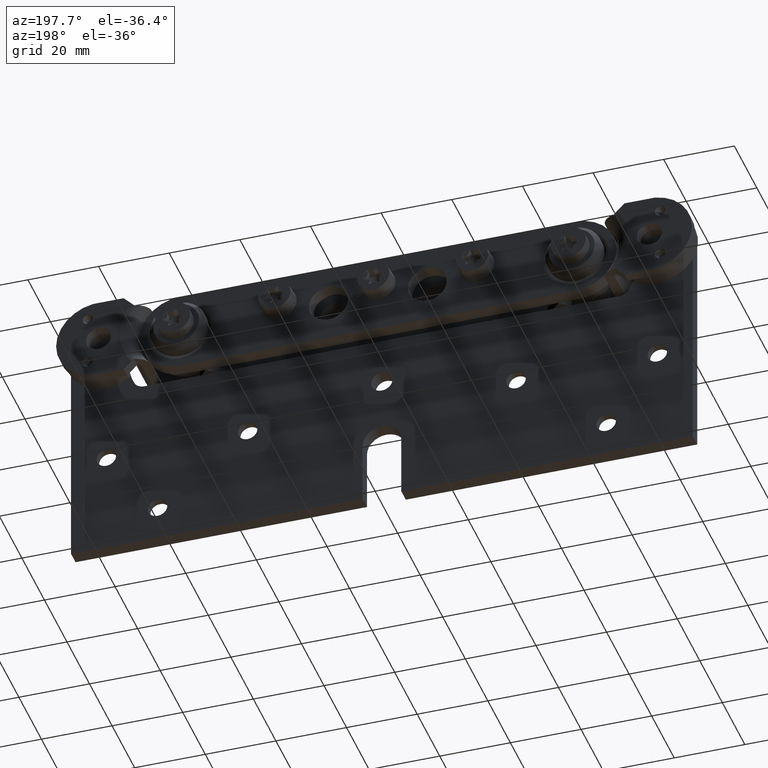
[diagram: clean part render]
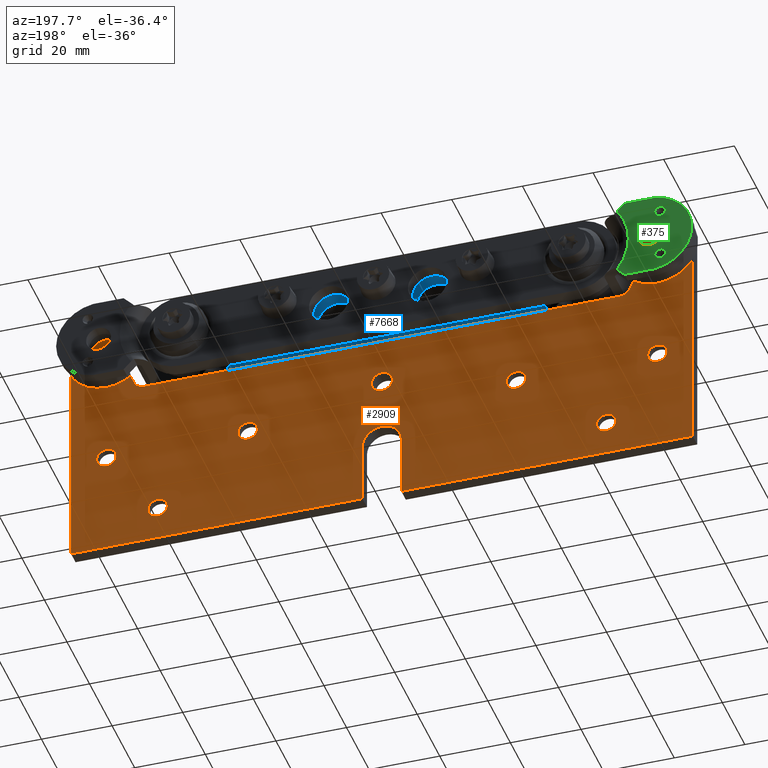
[diagram: same view with three faces highlighted in distinct colors, each labeled with its STEP entity id]
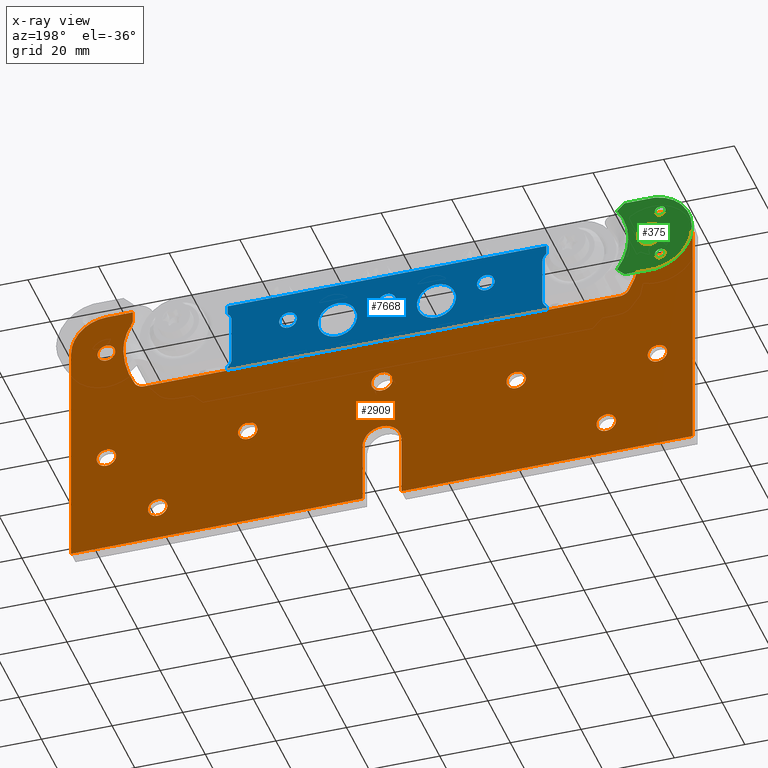
[diagram: x-ray of the same camera — body ghosted, the three highlighted faces saturated]
A machine part, auxiliary view with three faces highlighted in distinct colors.
The next image is the same camera in x-ray (body ghosted, the three faces saturated) — at least one of them is partly hidden behind the body in this view.
Their STEP definitions:

[orange] entity #2909 — the highlighted planar face has unit normal (0, 1, 0).
#73 = CARTESIAN_POINT ( 'NONE',  ( -72.50000000000001421, -4.000000000000000000, 35.69293206762673520 ) ) ;
#208 = CARTESIAN_POINT ( 'NONE',  ( -78.00000000000001421, -4.000000000000003553, 29.00000000000001066 ) ) ;
#310 = VERTEX_POINT ( 'NONE', #10543 ) ;
#348 = DIRECTION ( 'NONE',  ( 0.000000000000000000, -1.000000000000000000, 0.000000000000000000 ) ) ;
#437 = ORIENTED_EDGE ( 'NONE', *, *, #8553, .F. ) ;
#455 = VERTEX_POINT ( 'NONE', #3439 ) ;
#459 = EDGE_CURVE ( 'NONE', #10740, #2163, #3046, .T. ) ;
#471 = EDGE_CURVE ( 'NONE', #1829, #6250, #3440, .T. ) ;
#486 = EDGE_CURVE ( 'NONE', #805, #561, #1502, .T. ) ;
#561 = VERTEX_POINT ( 'NONE', #11374 ) ;
#696 = CARTESIAN_POINT ( 'NONE',  ( 70.50000000000000000, -4.000000000000000000, 35.69293206762673520 ) ) ;
#705 = EDGE_LOOP ( 'NONE', ( #1416, #9565 ) ) ;
#738 = DIRECTION ( 'NONE',  ( 0.000000000000000000, 0.000000000000000000, 1.000000000000000000 ) ) ;
#755 = EDGE_LOOP ( 'NONE', ( #4051, #8876 ) ) ;
#793 = DIRECTION ( 'NONE',  ( -1.000000000000000000, -0.000000000000000000, -0.000000000000000000 ) ) ;
#801 = ORIENTED_EDGE ( 'NONE', *, *, #10624, .T. ) ;
#805 = VERTEX_POINT ( 'NONE', #2743 ) ;
#806 = EDGE_LOOP ( 'NONE', ( #2295, #10677 ) ) ;
#814 = EDGE_CURVE ( 'NONE', #3841, #7625, #1648, .T. ) ;
#815 = DIRECTION ( 'NONE',  ( 0.000000000000000000, 0.000000000000000000, 1.000000000000000000 ) ) ;
#843 = DIRECTION ( 'NONE',  ( 1.000000000000000000, 0.000000000000000000, 0.000000000000000000 ) ) ;
#892 = CARTESIAN_POINT ( 'NONE',  ( 63.50000000000000000, -4.000000000000003553, -28.49999999999998934 ) ) ;
#938 = DIRECTION ( 'NONE',  ( -1.000000000000000000, -0.000000000000000000, -0.000000000000000000 ) ) ;
#996 = LINE ( 'NONE', #2093, #3842 ) ;
#1001 = CARTESIAN_POINT ( 'NONE',  ( 37.99999999999999289, -4.000000000000003553, -5.750000000000005329 ) ) ;
#1038 = DIRECTION ( 'NONE',  ( 0.000000000000000000, 0.000000000000000000, 1.000000000000000000 ) ) ;
#1182 = ORIENTED_EDGE ( 'NONE', *, *, #5281, .T. ) ;
#1205 = VECTOR ( 'NONE', #3490, 1000.000000000000000 ) ;
#1266 = ORIENTED_EDGE ( 'NONE', *, *, #10303, .T. ) ;
#1313 = ORIENTED_EDGE ( 'NONE', *, *, #8982, .T. ) ;
#1337 = CARTESIAN_POINT ( 'NONE',  ( -70.50000000000000000, -4.000000000000000000, 0.000000000000000000 ) ) ;
#1353 = CARTESIAN_POINT ( 'NONE',  ( -63.50000000000000000, -4.000000000000003553, -28.49999999999998934 ) ) ;
#1416 = ORIENTED_EDGE ( 'NONE', *, *, #2222, .T. ) ;
#1429 = EDGE_CURVE ( 'NONE', #6250, #805, #2312, .T. ) ;
#1454 = CIRCLE ( 'NONE', #3774, 2.500000000000002220 ) ;
#1461 = CARTESIAN_POINT ( 'NONE',  ( 63.50000000000000000, -4.000000000000003553, -25.75000000000000355 ) ) ;
#1502 = CIRCLE ( 'NONE', #4596, 2.000000000000001776 ) ;
#1505 = ORIENTED_EDGE ( 'NONE', *, *, #2409, .T. ) ;
#1580 = DIRECTION ( 'NONE',  ( -0.000000000000000000, 1.000000000000000000, -0.000000000000000000 ) ) ;
#1605 = CIRCLE ( 'NONE', #2570, 24.99999999999999289 ) ;
#1609 = VERTEX_POINT ( 'NONE', #696 ) ;
#1612 = LINE ( 'NONE', #11815, #1205 ) ;
#1648 = CIRCLE ( 'NONE', #2806, 2.749999999999988454 ) ;
#1687 = EDGE_CURVE ( 'NONE', #7937, #5512, #996, .T. ) ;
#1741 = CARTESIAN_POINT ( 'NONE',  ( -63.50000000000000000, -4.000000000000003553, -31.24999999999997868 ) ) ;
#1762 = AXIS2_PLACEMENT_3D ( 'NONE', #4535, #3326, #4416 ) ;
#1771 = DIRECTION ( 'NONE',  ( -0.000000000000000000, 1.000000000000000000, -0.000000000000000000 ) ) ;
#1772 = LINE ( 'NONE', #6569, #9115 ) ;
#1787 = DIRECTION ( 'NONE',  ( -0.000000000000000000, 1.000000000000000000, -0.000000000000000000 ) ) ;
#1801 = VERTEX_POINT ( 'NONE', #7007 ) ;
#1829 = VERTEX_POINT ( 'NONE', #8881 ) ;
#1913 = EDGE_LOOP ( 'NONE', ( #9994, #4007 ) ) ;
#1954 = CARTESIAN_POINT ( 'NONE',  ( -5.499999999999998224, -4.000000000000000000, -20.99999999999998934 ) ) ;
#2010 = CARTESIAN_POINT ( 'NONE',  ( 5.499999999999998224, -4.000000000000000000, -20.99999999999998934 ) ) ;
#2058 = DIRECTION ( 'NONE',  ( -0.000000000000000000, 1.000000000000000000, -0.000000000000000000 ) ) ;
#2093 = CARTESIAN_POINT ( 'NONE',  ( -87.99999999999998579, -4.000000000000000000, -38.49999999999999289 ) ) ;
#2163 = VERTEX_POINT ( 'NONE', #6874 ) ;
#2175 = AXIS2_PLACEMENT_3D ( 'NONE', #10049, #11877, #5444 ) ;
#2222 = EDGE_CURVE ( 'NONE', #1801, #3445, #9143, .T. ) ;
#2295 = ORIENTED_EDGE ( 'NONE', *, *, #10929, .T. ) ;
#2312 = CIRCLE ( 'NONE', #5015, 15.00000000000000355 ) ;
#2313 = FACE_OUTER_BOUND ( 'NONE', #4627, .T. ) ;
#2324 = ORIENTED_EDGE ( 'NONE', *, *, #11142, .F. ) ;
#2378 = CIRCLE ( 'NONE', #7782, 2.749999999999988454 ) ;
#2384 = VERTEX_POINT ( 'NONE', #8197 ) ;
#2409 = EDGE_CURVE ( 'NONE', #455, #9789, #1605, .T. ) ;
#2437 = CARTESIAN_POINT ( 'NONE',  ( 37.99999999999999289, -4.000000000000003553, -11.24999999999998224 ) ) ;
#2556 = CIRCLE ( 'NONE', #9919, 2.500000000000002220 ) ;
#2569 = AXIS2_PLACEMENT_3D ( 'NONE', #8355, #8474, #3866 ) ;
#2570 = AXIS2_PLACEMENT_3D ( 'NONE', #8132, #11918, #738 ) ;
#2574 = CARTESIAN_POINT ( 'NONE',  ( -73.19134425132158128, -4.000000000000000000, 25.99049284758023504 ) ) ;
#2622 = CARTESIAN_POINT ( 'NONE',  ( 0.000000000000000000, -4.000000000000000000, 13.00000000000001066 ) ) ;
#2644 = CARTESIAN_POINT ( 'NONE',  ( 78.00000000000000000, -4.000000000000000000, 28.50000000000000355 ) ) ;
#2657 = VERTEX_POINT ( 'NONE', #8180 ) ;
#2666 = LINE ( 'NONE', #6378, #3946 ) ;
#2739 = DIRECTION ( 'NONE',  ( -0.000000000000000000, 1.000000000000000000, -0.000000000000000000 ) ) ;
#2743 = CARTESIAN_POINT ( 'NONE',  ( -70.81764705882353894, -4.000000000000000000, 34.61141064790594157 ) ) ;
#2793 = AXIS2_PLACEMENT_3D ( 'NONE', #892, #4547, #8638 ) ;
#2800 = DIRECTION ( 'NONE',  ( 0.000000000000000000, 0.000000000000000000, 1.000000000000000000 ) ) ;
#2806 = AXIS2_PLACEMENT_3D ( 'NONE', #3664, #4572, #8321 ) ;
#2854 = CARTESIAN_POINT ( 'NONE',  ( 0.000000000000000000, -4.000000000000000000, -20.99999999999998934 ) ) ;
#2909 = ADVANCED_FACE ( 'NONE', ( #4969, #6785, #6012, #8790, #10679, #10428, #11527, #3031, #4908, #2313 ), #6974, .T. ) ;
#2922 = AXIS2_PLACEMENT_3D ( 'NONE', #2854, #6443, #9162 ) ;
#2929 = DIRECTION ( 'NONE',  ( 0.000000000000000000, 0.000000000000000000, 1.000000000000000000 ) ) ;
#2951 = VECTOR ( 'NONE', #9636, 1000.000000000000000 ) ;
#2988 = CIRCLE ( 'NONE', #10948, 2.999999999999988898 ) ;
#3031 = FACE_BOUND ( 'NONE', #5054, .T. ) ;
#3046 = CIRCLE ( 'NONE', #10211, 9.999999999999998224 ) ;
#3109 = CARTESIAN_POINT ( 'NONE',  ( 63.50000000000000000, -4.000000000000003553, -31.24999999999997868 ) ) ;
#3113 = DIRECTION ( 'NONE',  ( -0.000000000000000000, 1.000000000000000000, -0.000000000000000000 ) ) ;
#3130 = VERTEX_POINT ( 'NONE', #9083 ) ;
#3165 = DIRECTION ( 'NONE',  ( 0.000000000000000000, 0.000000000000000000, 1.000000000000000000 ) ) ;
#3169 = VERTEX_POINT ( 'NONE', #3746 ) ;
#3204 = AXIS2_PLACEMENT_3D ( 'NONE', #6384, #1771, #5361 ) ;
#3222 = LINE ( 'NONE', #1337, #3712 ) ;
#3244 = VERTEX_POINT ( 'NONE', #208 ) ;
#3277 = CIRCLE ( 'NONE', #8299, 2.500000000000002220 ) ;
#3326 = DIRECTION ( 'NONE',  ( 0.000000000000000000, 1.000000000000000000, 0.000000000000000000 ) ) ;
#3349 = ORIENTED_EDGE ( 'NONE', *, *, #8468, .T. ) ;
#3387 = CIRCLE ( 'NONE', #10156, 2.999999999999992450 ) ;
#3439 = CARTESIAN_POINT ( 'NONE',  ( 73.19134425132159549, -4.000000000000000000, 25.99049284758024569 ) ) ;
#3440 = CIRCLE ( 'NONE', #6155, 24.99999999999999289 ) ;
#3445 = VERTEX_POINT ( 'NONE', #1741 ) ;
#3446 = EDGE_CURVE ( 'NONE', #3445, #1801, #6252, .T. ) ;
#3457 = AXIS2_PLACEMENT_3D ( 'NONE', #5490, #6396, #9975 ) ;
#3476 = CARTESIAN_POINT ( 'NONE',  ( -78.00000000000001421, -4.000000000000003553, 26.50000000000001066 ) ) ;
#3488 = EDGE_CURVE ( 'NONE', #10740, #7211, #10485, .T. ) ;
#3490 = DIRECTION ( 'NONE',  ( 0.000000000000000000, -0.000000000000000000, -1.000000000000000000 ) ) ;
#3527 = DIRECTION ( 'NONE',  ( 0.000000000000000000, -0.000000000000000000, -1.000000000000000000 ) ) ;
#3543 = EDGE_CURVE ( 'NONE', #5561, #3244, #2556, .T. ) ;
#3562 = AXIS2_PLACEMENT_3D ( 'NONE', #11786, #9833, #6984 ) ;
#3572 = CARTESIAN_POINT ( 'NONE',  ( 0.000000000000000000, -4.000000000000003553, -0.4999999999999935052 ) ) ;
#3664 = CARTESIAN_POINT ( 'NONE',  ( -78.00000000000000000, -4.000000000000003553, -8.499999999999992895 ) ) ;
#3707 = CARTESIAN_POINT ( 'NONE',  ( 78.00000000000001421, -4.000000000000003553, 29.00000000000001066 ) ) ;
#3712 = VECTOR ( 'NONE', #11534, 1000.000000000000000 ) ;
#3746 = CARTESIAN_POINT ( 'NONE',  ( 78.00000000000000000, -4.000000000000003553, -5.750000000000005329 ) ) ;
#3750 = EDGE_CURVE ( 'NONE', #1609, #2657, #5848, .T. ) ;
#3764 = AXIS2_PLACEMENT_3D ( 'NONE', #6336, #4634, #2929 ) ;
#3771 = LINE ( 'NONE', #2622, #5685 ) ;
#3774 = AXIS2_PLACEMENT_3D ( 'NONE', #3476, #8012, #10994 ) ;
#3841 = VERTEX_POINT ( 'NONE', #4561 ) ;
#3842 = VECTOR ( 'NONE', #938, 1000.000000000000000 ) ;
#3866 = DIRECTION ( 'NONE',  ( 0.000000000000000000, 0.000000000000000000, 1.000000000000000000 ) ) ;
#3921 = ORIENTED_EDGE ( 'NONE', *, *, #7747, .T. ) ;
#3946 = VECTOR ( 'NONE', #843, 1000.000000000000000 ) ;
#3991 = DIRECTION ( 'NONE',  ( 0.000000000000000000, 0.000000000000000000, 1.000000000000000000 ) ) ;
#4007 = ORIENTED_EDGE ( 'NONE', *, *, #3543, .T. ) ;
#4020 = CARTESIAN_POINT ( 'NONE',  ( 78.00000000000000000, -4.000000000000003553, -8.499999999999992895 ) ) ;
#4051 = ORIENTED_EDGE ( 'NONE', *, *, #7417, .T. ) ;
#4057 = CARTESIAN_POINT ( 'NONE',  ( 88.00000000000001421, -4.000000000000000000, 38.50000000000000711 ) ) ;
#4059 = ORIENTED_EDGE ( 'NONE', *, *, #9001, .T. ) ;
#4096 = CARTESIAN_POINT ( 'NONE',  ( -37.99999999999999289, -4.000000000000003553, -8.499999999999992895 ) ) ;
#4135 = VERTEX_POINT ( 'NONE', #1461 ) ;
#4142 = CIRCLE ( 'NONE', #10930, 2.749999999999988454 ) ;
#4144 = CARTESIAN_POINT ( 'NONE',  ( 72.50000000000001421, -4.000000000000000000, 35.69293206762673520 ) ) ;
#4153 = VECTOR ( 'NONE', #4378, 1000.000000000000000 ) ;
#4162 = ORIENTED_EDGE ( 'NONE', *, *, #486, .T. ) ;
#4178 = DIRECTION ( 'NONE',  ( -0.000000000000000000, 1.000000000000000000, -0.000000000000000000 ) ) ;
#4224 = ORIENTED_EDGE ( 'NONE', *, *, #10619, .F. ) ;
#4297 = VECTOR ( 'NONE', #6530, 1000.000000000000000 ) ;
#4298 = DIRECTION ( 'NONE',  ( 0.000000000000000000, 1.000000000000000000, -0.000000000000000000 ) ) ;
#4325 = EDGE_CURVE ( 'NONE', #5079, #6009, #3277, .T. ) ;
#4365 = CARTESIAN_POINT ( 'NONE',  ( 63.50000000000000000, -4.000000000000003553, -28.49999999999998934 ) ) ;
#4378 = DIRECTION ( 'NONE',  ( -0.000000000000000000, -0.000000000000000000, 1.000000000000000000 ) ) ;
#4416 = DIRECTION ( 'NONE',  ( 0.000000000000000000, 0.000000000000000000, 1.000000000000000000 ) ) ;
#4439 = EDGE_CURVE ( 'NONE', #9789, #5939, #5790, .T. ) ;
#4480 = EDGE_LOOP ( 'NONE', ( #5849, #3921 ) ) ;
#4489 = DIRECTION ( 'NONE',  ( -0.000000000000000000, 1.000000000000000000, -0.000000000000000000 ) ) ;
#4508 = CARTESIAN_POINT ( 'NONE',  ( -78.00000000000000000, -4.000000000000003553, -8.499999999999992895 ) ) ;
#4535 = CARTESIAN_POINT ( 'NONE',  ( 58.20000000000000284, -4.000000000000000000, 26.50000000000000000 ) ) ;
#4536 = VERTEX_POINT ( 'NONE', #5263 ) ;
#4547 = DIRECTION ( 'NONE',  ( -0.000000000000000000, 1.000000000000000000, -0.000000000000000000 ) ) ;
#4548 = CARTESIAN_POINT ( 'NONE',  ( 78.00000000000001421, -4.000000000000003553, 26.50000000000001066 ) ) ;
#4561 = CARTESIAN_POINT ( 'NONE',  ( -78.00000000000000000, -4.000000000000003553, -11.24999999999998224 ) ) ;
#4572 = DIRECTION ( 'NONE',  ( -0.000000000000000000, 1.000000000000000000, -0.000000000000000000 ) ) ;
#4596 = AXIS2_PLACEMENT_3D ( 'NONE', #73, #7368, #5736 ) ;
#4602 = EDGE_CURVE ( 'NONE', #9677, #1609, #1612, .T. ) ;
#4627 = EDGE_LOOP ( 'NONE', ( #7698, #5210, #2324, #5017, #6956, #3349, #1505, #6282, #11558, #4970, #5165, #5392, #4162, #11680, #5438, #8641, #4224, #8232, #9533, #4059, #5959, #1313, #437 ) ) ;
#4634 = DIRECTION ( 'NONE',  ( 0.000000000000000000, 1.000000000000000000, 0.000000000000000000 ) ) ;
#4779 = AXIS2_PLACEMENT_3D ( 'NONE', #4365, #4178, #9635 ) ;
#4838 = EDGE_CURVE ( 'NONE', #3169, #7298, #2378, .T. ) ;
#4859 = DIRECTION ( 'NONE',  ( -0.000000000000000000, 1.000000000000000000, -0.000000000000000000 ) ) ;
#4908 = FACE_BOUND ( 'NONE', #806, .T. ) ;
#4955 = EDGE_LOOP ( 'NONE', ( #6228, #801 ) ) ;
#4969 = FACE_BOUND ( 'NONE', #4480, .T. ) ;
#4970 = ORIENTED_EDGE ( 'NONE', *, *, #7337, .T. ) ;
#5015 = AXIS2_PLACEMENT_3D ( 'NONE', #6675, #4298, #7977 ) ;
#5017 = ORIENTED_EDGE ( 'NONE', *, *, #4602, .T. ) ;
#5054 = EDGE_LOOP ( 'NONE', ( #7563, #1182 ) ) ;
#5079 = VERTEX_POINT ( 'NONE', #3707 ) ;
#5165 = ORIENTED_EDGE ( 'NONE', *, *, #471, .T. ) ;
#5167 = EDGE_CURVE ( 'NONE', #6009, #5079, #11493, .T. ) ;
#5188 = CARTESIAN_POINT ( 'NONE',  ( 5.500000000000000000, -4.000000000000000000, -38.50000000000000000 ) ) ;
#5195 = CARTESIAN_POINT ( 'NONE',  ( -87.99999999999998579, -4.000000000000000000, 28.50000000000000355 ) ) ;
#5202 = DIRECTION ( 'NONE',  ( -0.000000000000000000, 1.000000000000000000, -0.000000000000000000 ) ) ;
#5210 = ORIENTED_EDGE ( 'NONE', *, *, #459, .T. ) ;
#5244 = DIRECTION ( 'NONE',  ( 0.000000000000000000, 0.000000000000000000, -1.000000000000000000 ) ) ;
#5263 = CARTESIAN_POINT ( 'NONE',  ( 0.000000000000000000, -4.000000000000003553, 2.499999999999995115 ) ) ;
#5281 = EDGE_CURVE ( 'NONE', #7298, #3169, #8774, .T. ) ;
#5361 = DIRECTION ( 'NONE',  ( 0.000000000000000000, 0.000000000000000000, 1.000000000000000000 ) ) ;
#5392 = ORIENTED_EDGE ( 'NONE', *, *, #1429, .T. ) ;
#5438 = ORIENTED_EDGE ( 'NONE', *, *, #10737, .F. ) ;
#5444 = DIRECTION ( 'NONE',  ( 0.000000000000000000, 0.000000000000000000, 1.000000000000000000 ) ) ;
#5490 = CARTESIAN_POINT ( 'NONE',  ( -78.00000000000000000, -4.000000000000000000, 28.50000000000000355 ) ) ;
#5510 = AXIS2_PLACEMENT_3D ( 'NONE', #4508, #5658, #1038 ) ;
#5512 = VERTEX_POINT ( 'NONE', #8173 ) ;
#5527 = CARTESIAN_POINT ( 'NONE',  ( 88.00000000000001421, -4.000000000000000000, 28.50000000000000355 ) ) ;
#5561 = VERTEX_POINT ( 'NONE', #5697 ) ;
#5658 = DIRECTION ( 'NONE',  ( -0.000000000000000000, 1.000000000000000000, -0.000000000000000000 ) ) ;
#5685 = VECTOR ( 'NONE', #793, 1000.000000000000000 ) ;
#5697 = CARTESIAN_POINT ( 'NONE',  ( -78.00000000000001421, -4.000000000000003553, 24.00000000000000711 ) ) ;
#5736 = DIRECTION ( 'NONE',  ( 0.000000000000000000, 0.000000000000000000, -1.000000000000000000 ) ) ;
#5790 = CIRCLE ( 'NONE', #2569, 2.999999999999992450 ) ;
#5848 = CIRCLE ( 'NONE', #11867, 2.000000000000001776 ) ;
#5849 = ORIENTED_EDGE ( 'NONE', *, *, #7067, .T. ) ;
#5913 = ORIENTED_EDGE ( 'NONE', *, *, #814, .T. ) ;
#5939 = VERTEX_POINT ( 'NONE', #9993 ) ;
#5959 = ORIENTED_EDGE ( 'NONE', *, *, #7310, .T. ) ;
#6009 = VERTEX_POINT ( 'NONE', #6592 ) ;
#6012 = FACE_BOUND ( 'NONE', #9551, .T. ) ;
#6100 = CIRCLE ( 'NONE', #11323, 2.749999999999988454 ) ;
#6151 = CARTESIAN_POINT ( 'NONE',  ( -78.00000000000000000, -4.000000000000003553, -5.750000000000005329 ) ) ;
#6155 = AXIS2_PLACEMENT_3D ( 'NONE', #6347, #10051, #815 ) ;
#6182 = DIRECTION ( 'NONE',  ( -0.000000000000000000, -1.000000000000000000, 0.000000000000000000 ) ) ;
#6194 = EDGE_CURVE ( 'NONE', #3130, #11690, #8088, .T. ) ;
#6219 = CARTESIAN_POINT ( 'NONE',  ( -5.500000000000005329, -4.000000000000000000, 0.000000000000000000 ) ) ;
#6228 = ORIENTED_EDGE ( 'NONE', *, *, #7198, .T. ) ;
#6250 = VERTEX_POINT ( 'NONE', #2574 ) ;
#6252 = CIRCLE ( 'NONE', #2175, 2.749999999999988454 ) ;
#6265 = AXIS2_PLACEMENT_3D ( 'NONE', #6399, #1787, #10095 ) ;
#6282 = ORIENTED_EDGE ( 'NONE', *, *, #4439, .T. ) ;
#6283 = CARTESIAN_POINT ( 'NONE',  ( 78.00000000000000000, -4.000000000000003553, -11.24999999999998224 ) ) ;
#6298 = LINE ( 'NONE', #7315, #9446 ) ;
#6317 = CARTESIAN_POINT ( 'NONE',  ( -67.34999999999999432, -4.000000000000000000, 13.00000000000000533 ) ) ;
#6336 = CARTESIAN_POINT ( 'NONE',  ( 0.000000000000000000, -4.000000000000000000, -20.99999999999998934 ) ) ;
#6347 = CARTESIAN_POINT ( 'NONE',  ( -48.20577049911892686, -4.000000000000000000, 26.83967143494651353 ) ) ;
#6378 = CARTESIAN_POINT ( 'NONE',  ( -87.99999999999998579, -4.000000000000000000, 38.50000000000000711 ) ) ;
#6384 = CARTESIAN_POINT ( 'NONE',  ( 0.000000000000000000, -4.000000000000003553, -0.4999999999999935052 ) ) ;
#6396 = DIRECTION ( 'NONE',  ( -0.000000000000000000, -1.000000000000000000, -0.000000000000000000 ) ) ;
#6399 = CARTESIAN_POINT ( 'NONE',  ( 78.00000000000000000, -4.000000000000003553, -8.499999999999992895 ) ) ;
#6443 = DIRECTION ( 'NONE',  ( 0.000000000000000000, 1.000000000000000000, 0.000000000000000000 ) ) ;
#6466 = VERTEX_POINT ( 'NONE', #3109 ) ;
#6473 = CIRCLE ( 'NONE', #3562, 2.749999999999988454 ) ;
#6530 = DIRECTION ( 'NONE',  ( -1.000000000000000000, -0.000000000000000000, -0.000000000000000000 ) ) ;
#6569 = CARTESIAN_POINT ( 'NONE',  ( 5.499999999999998224, -4.000000000000000000, 0.000000000000000000 ) ) ;
#6592 = CARTESIAN_POINT ( 'NONE',  ( 78.00000000000001421, -4.000000000000003553, 24.00000000000000711 ) ) ;
#6675 = CARTESIAN_POINT ( 'NONE',  ( -58.20000000000000284, -4.000000000000000000, 26.50000000000000000 ) ) ;
#6730 = CARTESIAN_POINT ( 'NONE',  ( 3.673940397442045570E-16, -4.000000000000003553, -3.499999999999982236 ) ) ;
#6753 = VERTEX_POINT ( 'NONE', #6317 ) ;
#6783 = CIRCLE ( 'NONE', #1762, 15.00000000000000355 ) ;
#6785 = FACE_BOUND ( 'NONE', #1913, .T. ) ;
#6874 = CARTESIAN_POINT ( 'NONE',  ( 78.00000000000000000, -4.000000000000000000, 38.50000000000000711 ) ) ;
#6907 = CIRCLE ( 'NONE', #4779, 2.749999999999988454 ) ;
#6913 = LINE ( 'NONE', #11726, #4153 ) ;
#6956 = ORIENTED_EDGE ( 'NONE', *, *, #3750, .T. ) ;
#6974 = PLANE ( 'NONE',  #10433 ) ;
#6984 = DIRECTION ( 'NONE',  ( 0.000000000000000000, 0.000000000000000000, 1.000000000000000000 ) ) ;
#6985 = VERTEX_POINT ( 'NONE', #6730 ) ;
#7007 = CARTESIAN_POINT ( 'NONE',  ( -63.50000000000000000, -4.000000000000003553, -25.75000000000000355 ) ) ;
#7067 = EDGE_CURVE ( 'NONE', #4536, #6985, #2988, .T. ) ;
#7080 = EDGE_CURVE ( 'NONE', #6466, #4135, #7445, .T. ) ;
#7198 = EDGE_CURVE ( 'NONE', #7853, #8768, #6100, .T. ) ;
#7211 = VERTEX_POINT ( 'NONE', #10654 ) ;
#7298 = VERTEX_POINT ( 'NONE', #6283 ) ;
#7310 = EDGE_CURVE ( 'NONE', #2384, #10403, #8998, .T. ) ;
#7315 = CARTESIAN_POINT ( 'NONE',  ( -87.99999999999998579, -4.000000000000000000, 38.50000000000000711 ) ) ;
#7337 = EDGE_CURVE ( 'NONE', #6753, #1829, #3387, .T. ) ;
#7368 = DIRECTION ( 'NONE',  ( -0.000000000000000000, -1.000000000000000000, -0.000000000000000000 ) ) ;
#7417 = EDGE_CURVE ( 'NONE', #8499, #10582, #8028, .T. ) ;
#7434 = CARTESIAN_POINT ( 'NONE',  ( -87.99999999999998579, -4.000000000000000000, -38.49999999999999289 ) ) ;
#7445 = CIRCLE ( 'NONE', #2793, 2.749999999999988454 ) ;
#7535 = CARTESIAN_POINT ( 'NONE',  ( 37.99999999999999289, -4.000000000000003553, -8.499999999999992895 ) ) ;
#7563 = ORIENTED_EDGE ( 'NONE', *, *, #4838, .T. ) ;
#7625 = VERTEX_POINT ( 'NONE', #6151 ) ;
#7651 = DIRECTION ( 'NONE',  ( 0.000000000000000000, 0.000000000000000000, 1.000000000000000000 ) ) ;
#7664 = EDGE_CURVE ( 'NONE', #3244, #5561, #1454, .T. ) ;
#7698 = ORIENTED_EDGE ( 'NONE', *, *, #3488, .F. ) ;
#7707 = DIRECTION ( 'NONE',  ( 0.000000000000000000, 1.000000000000000000, -0.000000000000000000 ) ) ;
#7747 = EDGE_CURVE ( 'NONE', #6985, #4536, #10561, .T. ) ;
#7782 = AXIS2_PLACEMENT_3D ( 'NONE', #4020, #3113, #7651 ) ;
#7853 = VERTEX_POINT ( 'NONE', #11171 ) ;
#7937 = VERTEX_POINT ( 'NONE', #9342 ) ;
#7977 = DIRECTION ( 'NONE',  ( 0.000000000000000000, 0.000000000000000000, 1.000000000000000000 ) ) ;
#8012 = DIRECTION ( 'NONE',  ( -0.000000000000000000, 1.000000000000000000, -0.000000000000000000 ) ) ;
#8028 = CIRCLE ( 'NONE', #11921, 2.749999999999988454 ) ;
#8045 = CARTESIAN_POINT ( 'NONE',  ( 69.96057675012011146, -4.000000000000000000, 14.52186298614364546 ) ) ;
#8088 = CIRCLE ( 'NONE', #3457, 9.999999999999998224 ) ;
#8132 = CARTESIAN_POINT ( 'NONE',  ( 48.20577049911892686, -4.000000000000000000, 26.83967143494651353 ) ) ;
#8173 = CARTESIAN_POINT ( 'NONE',  ( -87.99999999999998579, -4.000000000000000000, -38.49999999999999289 ) ) ;
#8180 = CARTESIAN_POINT ( 'NONE',  ( 70.81764705882352473, -4.000000000000000000, 34.61141064790594868 ) ) ;
#8197 = CARTESIAN_POINT ( 'NONE',  ( 0.000000000000000000, -4.000000000000000000, -15.49999999999999289 ) ) ;
#8232 = ORIENTED_EDGE ( 'NONE', *, *, #1687, .F. ) ;
#8299 = AXIS2_PLACEMENT_3D ( 'NONE', #4548, #1580, #8300 ) ;
#8300 = DIRECTION ( 'NONE',  ( 0.000000000000000000, 0.000000000000000000, 1.000000000000000000 ) ) ;
#8318 = EDGE_LOOP ( 'NONE', ( #1266, #5913 ) ) ;
#8321 = DIRECTION ( 'NONE',  ( 0.000000000000000000, 0.000000000000000000, 1.000000000000000000 ) ) ;
#8355 = CARTESIAN_POINT ( 'NONE',  ( 67.34999999999999432, -4.000000000000000000, 16.00000000000000355 ) ) ;
#8365 = AXIS2_PLACEMENT_3D ( 'NONE', #1353, #11679, #8692 ) ;
#8378 = AXIS2_PLACEMENT_3D ( 'NONE', #10374, #4859, #3165 ) ;
#8468 = EDGE_CURVE ( 'NONE', #2657, #455, #6783, .T. ) ;
#8474 = DIRECTION ( 'NONE',  ( 0.000000000000000000, 1.000000000000000000, 0.000000000000000000 ) ) ;
#8499 = VERTEX_POINT ( 'NONE', #1001 ) ;
#8553 = EDGE_CURVE ( 'NONE', #7211, #10159, #9430, .T. ) ;
#8638 = DIRECTION ( 'NONE',  ( 0.000000000000000000, 0.000000000000000000, 1.000000000000000000 ) ) ;
#8641 = ORIENTED_EDGE ( 'NONE', *, *, #6194, .T. ) ;
#8643 = ORIENTED_EDGE ( 'NONE', *, *, #5167, .T. ) ;
#8692 = DIRECTION ( 'NONE',  ( 0.000000000000000000, 0.000000000000000000, 1.000000000000000000 ) ) ;
#8725 = CARTESIAN_POINT ( 'NONE',  ( 0.000000000000000000, -4.000000000000000000, 0.000000000000000000 ) ) ;
#8768 = VERTEX_POINT ( 'NONE', #9224 ) ;
#8774 = CIRCLE ( 'NONE', #6265, 2.749999999999988454 ) ;
#8790 = FACE_BOUND ( 'NONE', #8318, .T. ) ;
#8813 = LINE ( 'NONE', #6219, #9754 ) ;
#8859 = VERTEX_POINT ( 'NONE', #1954 ) ;
#8876 = ORIENTED_EDGE ( 'NONE', *, *, #10263, .T. ) ;
#8881 = CARTESIAN_POINT ( 'NONE',  ( -69.96057675012011146, -4.000000000000000000, 14.52186298614364723 ) ) ;
#8982 = EDGE_CURVE ( 'NONE', #10403, #10159, #1772, .T. ) ;
#8998 = CIRCLE ( 'NONE', #3764, 5.499999999999998224 ) ;
#9001 = EDGE_CURVE ( 'NONE', #8859, #2384, #11846, .T. ) ;
#9083 = CARTESIAN_POINT ( 'NONE',  ( -78.00000000000000000, -4.000000000000000000, 38.50000000000000711 ) ) ;
#9115 = VECTOR ( 'NONE', #3527, 1000.000000000000000 ) ;
#9143 = CIRCLE ( 'NONE', #8365, 2.749999999999988454 ) ;
#9162 = DIRECTION ( 'NONE',  ( 0.000000000000000000, 0.000000000000000000, 1.000000000000000000 ) ) ;
#9224 = CARTESIAN_POINT ( 'NONE',  ( -37.99999999999999289, -4.000000000000003553, -11.24999999999998224 ) ) ;
#9236 = EDGE_CURVE ( 'NONE', #561, #310, #3222, .T. ) ;
#9342 = CARTESIAN_POINT ( 'NONE',  ( -5.500000000000005329, -4.000000000000000000, -38.49999999999999289 ) ) ;
#9430 = LINE ( 'NONE', #7434, #4297 ) ;
#9446 = VECTOR ( 'NONE', #9997, 1000.000000000000000 ) ;
#9533 = ORIENTED_EDGE ( 'NONE', *, *, #10029, .T. ) ;
#9551 = EDGE_LOOP ( 'NONE', ( #9837, #8643 ) ) ;
#9565 = ORIENTED_EDGE ( 'NONE', *, *, #3446, .T. ) ;
#9635 = DIRECTION ( 'NONE',  ( 0.000000000000000000, 0.000000000000000000, 1.000000000000000000 ) ) ;
#9636 = DIRECTION ( 'NONE',  ( 0.000000000000000000, 0.000000000000000000, -1.000000000000000000 ) ) ;
#9677 = VERTEX_POINT ( 'NONE', #11647 ) ;
#9754 = VECTOR ( 'NONE', #10642, 1000.000000000000000 ) ;
#9786 = DIRECTION ( 'NONE',  ( -0.000000000000000000, -1.000000000000000000, 0.000000000000000000 ) ) ;
#9789 = VERTEX_POINT ( 'NONE', #8045 ) ;
#9833 = DIRECTION ( 'NONE',  ( -0.000000000000000000, 1.000000000000000000, -0.000000000000000000 ) ) ;
#9837 = ORIENTED_EDGE ( 'NONE', *, *, #4325, .T. ) ;
#9871 = DIRECTION ( 'NONE',  ( 0.000000000000000000, 0.000000000000000000, -1.000000000000000000 ) ) ;
#9919 = AXIS2_PLACEMENT_3D ( 'NONE', #10361, #2058, #3991 ) ;
#9975 = DIRECTION ( 'NONE',  ( 0.000000000000000000, 0.000000000000000000, -1.000000000000000000 ) ) ;
#9993 = CARTESIAN_POINT ( 'NONE',  ( 67.34999999999999432, -4.000000000000000000, 13.00000000000001066 ) ) ;
#9994 = ORIENTED_EDGE ( 'NONE', *, *, #7664, .T. ) ;
#9997 = DIRECTION ( 'NONE',  ( 1.000000000000000000, 0.000000000000000000, 0.000000000000000000 ) ) ;
#10029 = EDGE_CURVE ( 'NONE', #7937, #8859, #8813, .T. ) ;
#10049 = CARTESIAN_POINT ( 'NONE',  ( -63.50000000000000000, -4.000000000000003553, -28.49999999999998934 ) ) ;
#10051 = DIRECTION ( 'NONE',  ( 0.000000000000000000, 1.000000000000000000, 0.000000000000000000 ) ) ;
#10095 = DIRECTION ( 'NONE',  ( 0.000000000000000000, 0.000000000000000000, 1.000000000000000000 ) ) ;
#10150 = CIRCLE ( 'NONE', #5510, 2.749999999999988454 ) ;
#10156 = AXIS2_PLACEMENT_3D ( 'NONE', #10210, #7707, #10452 ) ;
#10159 = VERTEX_POINT ( 'NONE', #5188 ) ;
#10210 = CARTESIAN_POINT ( 'NONE',  ( -67.34999999999999432, -4.000000000000000000, 16.00000000000000355 ) ) ;
#10211 = AXIS2_PLACEMENT_3D ( 'NONE', #2644, #6182, #9871 ) ;
#10263 = EDGE_CURVE ( 'NONE', #10582, #8499, #4142, .T. ) ;
#10273 = EDGE_CURVE ( 'NONE', #5939, #6753, #3771, .T. ) ;
#10303 = EDGE_CURVE ( 'NONE', #7625, #3841, #10150, .T. ) ;
#10361 = CARTESIAN_POINT ( 'NONE',  ( -78.00000000000001421, -4.000000000000003553, 26.50000000000001066 ) ) ;
#10374 = CARTESIAN_POINT ( 'NONE',  ( 78.00000000000001421, -4.000000000000003553, 26.50000000000001066 ) ) ;
#10385 = DIRECTION ( 'NONE',  ( 0.000000000000000000, 0.000000000000000000, 1.000000000000000000 ) ) ;
#10403 = VERTEX_POINT ( 'NONE', #2010 ) ;
#10428 = FACE_BOUND ( 'NONE', #4955, .T. ) ;
#10433 = AXIS2_PLACEMENT_3D ( 'NONE', #8725, #348, #10557 ) ;
#10452 = DIRECTION ( 'NONE',  ( 0.000000000000000000, 0.000000000000000000, 1.000000000000000000 ) ) ;
#10485 = LINE ( 'NONE', #4057, #2951 ) ;
#10543 = CARTESIAN_POINT ( 'NONE',  ( -70.50000000000000000, -4.000000000000000000, 38.50000000000002132 ) ) ;
#10557 = DIRECTION ( 'NONE',  ( 0.000000000000000000, -0.000000000000000000, -1.000000000000000000 ) ) ;
#10561 = CIRCLE ( 'NONE', #3204, 2.999999999999988898 ) ;
#10582 = VERTEX_POINT ( 'NONE', #2437 ) ;
#10619 = EDGE_CURVE ( 'NONE', #5512, #11690, #6913, .T. ) ;
#10624 = EDGE_CURVE ( 'NONE', #8768, #7853, #6473, .T. ) ;
#10642 = DIRECTION ( 'NONE',  ( -0.000000000000000000, 0.000000000000000000, 1.000000000000000000 ) ) ;
#10654 = CARTESIAN_POINT ( 'NONE',  ( 88.00000000000001421, -4.000000000000000000, -38.49999999999999289 ) ) ;
#10677 = ORIENTED_EDGE ( 'NONE', *, *, #7080, .T. ) ;
#10679 = FACE_BOUND ( 'NONE', #705, .T. ) ;
#10718 = DIRECTION ( 'NONE',  ( 0.000000000000000000, 0.000000000000000000, 1.000000000000000000 ) ) ;
#10737 = EDGE_CURVE ( 'NONE', #3130, #310, #2666, .T. ) ;
#10740 = VERTEX_POINT ( 'NONE', #5527 ) ;
#10929 = EDGE_CURVE ( 'NONE', #4135, #6466, #6907, .T. ) ;
#10930 = AXIS2_PLACEMENT_3D ( 'NONE', #11175, #2739, #2800 ) ;
#10948 = AXIS2_PLACEMENT_3D ( 'NONE', #3572, #4489, #10981 ) ;
#10981 = DIRECTION ( 'NONE',  ( 0.000000000000000000, 0.000000000000000000, 1.000000000000000000 ) ) ;
#10994 = DIRECTION ( 'NONE',  ( 0.000000000000000000, 0.000000000000000000, 1.000000000000000000 ) ) ;
#11142 = EDGE_CURVE ( 'NONE', #9677, #2163, #6298, .T. ) ;
#11171 = CARTESIAN_POINT ( 'NONE',  ( -37.99999999999999289, -4.000000000000003553, -5.750000000000005329 ) ) ;
#11175 = CARTESIAN_POINT ( 'NONE',  ( 37.99999999999999289, -4.000000000000003553, -8.499999999999992895 ) ) ;
#11323 = AXIS2_PLACEMENT_3D ( 'NONE', #4096, #5202, #10718 ) ;
#11363 = DIRECTION ( 'NONE',  ( -0.000000000000000000, 1.000000000000000000, -0.000000000000000000 ) ) ;
#11374 = CARTESIAN_POINT ( 'NONE',  ( -70.50000000000000000, -4.000000000000000000, 35.69293206762673520 ) ) ;
#11493 = CIRCLE ( 'NONE', #8378, 2.500000000000002220 ) ;
#11527 = FACE_BOUND ( 'NONE', #755, .T. ) ;
#11534 = DIRECTION ( 'NONE',  ( -0.000000000000000000, 0.000000000000000000, 1.000000000000000000 ) ) ;
#11558 = ORIENTED_EDGE ( 'NONE', *, *, #10273, .T. ) ;
#11647 = CARTESIAN_POINT ( 'NONE',  ( 70.50000000000000000, -4.000000000000000000, 38.50000000000000711 ) ) ;
#11679 = DIRECTION ( 'NONE',  ( -0.000000000000000000, 1.000000000000000000, -0.000000000000000000 ) ) ;
#11680 = ORIENTED_EDGE ( 'NONE', *, *, #9236, .T. ) ;
#11690 = VERTEX_POINT ( 'NONE', #5195 ) ;
#11726 = CARTESIAN_POINT ( 'NONE',  ( -87.99999999999998579, -4.000000000000000000, 38.50000000000000711 ) ) ;
#11786 = CARTESIAN_POINT ( 'NONE',  ( -37.99999999999999289, -4.000000000000003553, -8.499999999999992895 ) ) ;
#11815 = CARTESIAN_POINT ( 'NONE',  ( 70.50000000000000000, -4.000000000000000000, 0.000000000000000000 ) ) ;
#11846 = CIRCLE ( 'NONE', #2922, 5.499999999999998224 ) ;
#11867 = AXIS2_PLACEMENT_3D ( 'NONE', #4144, #9786, #5244 ) ;
#11877 = DIRECTION ( 'NONE',  ( -0.000000000000000000, 1.000000000000000000, -0.000000000000000000 ) ) ;
#11918 = DIRECTION ( 'NONE',  ( 0.000000000000000000, 1.000000000000000000, -0.000000000000000000 ) ) ;
#11921 = AXIS2_PLACEMENT_3D ( 'NONE', #7535, #11363, #10385 ) ;

[blue] entity #7668 — the highlighted planar face has unit normal (0, -1, 0).
#61 = AXIS2_PLACEMENT_3D ( 'NONE', #10568, #6625, #8547 ) ;
#62 = DIRECTION ( 'NONE',  ( -1.000000000000000000, -1.224646799147352961E-16, 0.000000000000000000 ) ) ;
#180 = VECTOR ( 'NONE', #8806, 1000.000000000000000 ) ;
#228 = AXIS2_PLACEMENT_3D ( 'NONE', #6623, #11474, #7524 ) ;
#265 = CARTESIAN_POINT ( 'NONE',  ( -9.998773288950615620E-33, 2.775557561562891351E-14, 16.99999999999998224 ) ) ;
#283 = LINE ( 'NONE', #10490, #8475 ) ;
#365 = EDGE_LOOP ( 'NONE', ( #1571, #753 ) ) ;
#394 = AXIS2_PLACEMENT_3D ( 'NONE', #4563, #5362, #10082 ) ;
#409 = EDGE_CURVE ( 'NONE', #9955, #4275, #7005, .T. ) ;
#473 = CARTESIAN_POINT ( 'NONE',  ( -45.11980067765095725, 0.000000000000000000, 23.00000000000000711 ) ) ;
#576 = VERTEX_POINT ( 'NONE', #4091 ) ;
#584 = CARTESIAN_POINT ( 'NONE',  ( 45.11980067765095725, 2.775557561562891351E-14, 22.99999999999999289 ) ) ;
#634 = CIRCLE ( 'NONE', #228, 2.499999999999998668 ) ;
#753 = ORIENTED_EDGE ( 'NONE', *, *, #5136, .T. ) ;
#756 = EDGE_LOOP ( 'NONE', ( #8662, #10871 ) ) ;
#943 = VERTEX_POINT ( 'NONE', #10381 ) ;
#987 = AXIS2_PLACEMENT_3D ( 'NONE', #6138, #4189, #10686 ) ;
#990 = EDGE_CURVE ( 'NONE', #6285, #4152, #5120, .T. ) ;
#1003 = CARTESIAN_POINT ( 'NONE',  ( -45.11980067765095725, 0.000000000000000000, 23.00000000000000711 ) ) ;
#1072 = ORIENTED_EDGE ( 'NONE', *, *, #8969, .T. ) ;
#1076 = EDGE_CURVE ( 'NONE', #5805, #10768, #9886, .T. ) ;
#1211 = LINE ( 'NONE', #473, #5347 ) ;
#1259 = CIRCLE ( 'NONE', #1459, 2.499999999999998668 ) ;
#1318 = CARTESIAN_POINT ( 'NONE',  ( -27.99999999999999645, 2.775557561562891351E-14, 16.99999999999999645 ) ) ;
#1335 = DIRECTION ( 'NONE',  ( 1.000000000000000000, 1.224646799147352961E-16, 0.000000000000000000 ) ) ;
#1386 = ORIENTED_EDGE ( 'NONE', *, *, #3313, .T. ) ;
#1422 = AXIS2_PLACEMENT_3D ( 'NONE', #11328, #10226, #9497 ) ;
#1459 = AXIS2_PLACEMENT_3D ( 'NONE', #7816, #5169, #11533 ) ;
#1481 = VERTEX_POINT ( 'NONE', #9125 ) ;
#1532 = VECTOR ( 'NONE', #1335, 1000.000000000000000 ) ;
#1571 = ORIENTED_EDGE ( 'NONE', *, *, #1076, .T. ) ;
#1649 = CARTESIAN_POINT ( 'NONE',  ( 0.000000000000000000, 2.775557561562891351E-14, 14.49999999999998579 ) ) ;
#1742 = CARTESIAN_POINT ( 'NONE',  ( 0.000000000000000000, 2.775557561562891351E-14, 14.49999999999998579 ) ) ;
#1862 = ORIENTED_EDGE ( 'NONE', *, *, #990, .T. ) ;
#1884 = VERTEX_POINT ( 'NONE', #11688 ) ;
#1941 = CARTESIAN_POINT ( 'NONE',  ( -44.00000000000000000, 0.000000000000000000, 5.000000000000004441 ) ) ;
#2106 = DIRECTION ( 'NONE',  ( -1.000000000000000000, -1.224646799147352468E-16, 0.000000000000000000 ) ) ;
#2263 = EDGE_CURVE ( 'NONE', #3201, #6999, #5838, .T. ) ;
#2309 = ORIENTED_EDGE ( 'NONE', *, *, #6406, .T. ) ;
#2311 = AXIS2_PLACEMENT_3D ( 'NONE', #11897, #3515, #6309 ) ;
#2364 = CIRCLE ( 'NONE', #987, 3.000000000000002665 ) ;
#2560 = DIRECTION ( 'NONE',  ( -1.000000000000000000, -1.224646799147352961E-16, 0.000000000000000000 ) ) ;
#2764 = VERTEX_POINT ( 'NONE', #10366 ) ;
#2926 = ORIENTED_EDGE ( 'NONE', *, *, #9460, .F. ) ;
#2967 = ORIENTED_EDGE ( 'NONE', *, *, #4327, .T. ) ;
#3006 = EDGE_CURVE ( 'NONE', #5441, #1884, #283, .T. ) ;
#3026 = CARTESIAN_POINT ( 'NONE',  ( -44.00000000000000000, 0.000000000000000000, 5.000000000000004441 ) ) ;
#3164 = CARTESIAN_POINT ( 'NONE',  ( -45.11980067765095725, 0.000000000000000000, 0.000000000000000000 ) ) ;
#3201 = VERTEX_POINT ( 'NONE', #5574 ) ;
#3313 = EDGE_CURVE ( 'NONE', #10680, #2764, #11879, .T. ) ;
#3410 = CARTESIAN_POINT ( 'NONE',  ( -27.99999999999999645, 2.775557561562891351E-14, 14.49999999999999822 ) ) ;
#3500 = VERTEX_POINT ( 'NONE', #5881 ) ;
#3515 = DIRECTION ( 'NONE',  ( -1.224646799147353454E-16, 1.000000000000000000, 0.000000000000000000 ) ) ;
#3520 = ORIENTED_EDGE ( 'NONE', *, *, #8062, .T. ) ;
#3526 = CARTESIAN_POINT ( 'NONE',  ( -45.50000000000000000, 0.000000000000000000, 23.00000000000000711 ) ) ;
#3581 = EDGE_LOOP ( 'NONE', ( #3520, #10324 ) ) ;
#3591 = LINE ( 'NONE', #7281, #9705 ) ;
#3675 = ORIENTED_EDGE ( 'NONE', *, *, #9957, .T. ) ;
#3741 = DIRECTION ( 'NONE',  ( 1.000000000000000000, 1.224646799147352961E-16, 0.000000000000000000 ) ) ;
#3791 = EDGE_LOOP ( 'NONE', ( #2309, #4453 ) ) ;
#3893 = AXIS2_PLACEMENT_3D ( 'NONE', #1742, #5505, #9070 ) ;
#3900 = VERTEX_POINT ( 'NONE', #10080 ) ;
#3920 = DIRECTION ( 'NONE',  ( -1.224646799147353454E-16, 1.000000000000000000, 0.000000000000000000 ) ) ;
#3962 = EDGE_CURVE ( 'NONE', #4275, #9955, #9672, .T. ) ;
#4091 = CARTESIAN_POINT ( 'NONE',  ( 28.00000000000000355, 2.775557561562891351E-14, 16.99999999999998224 ) ) ;
#4152 = VERTEX_POINT ( 'NONE', #3164 ) ;
#4189 = DIRECTION ( 'NONE',  ( -1.224646799147353454E-16, 1.000000000000000000, 0.000000000000000000 ) ) ;
#4191 = EDGE_CURVE ( 'NONE', #9967, #5899, #5109, .T. ) ;
#4245 = VERTEX_POINT ( 'NONE', #4252 ) ;
#4252 = CARTESIAN_POINT ( 'NONE',  ( -13.99999999999998401, 0.000000000000000000, 6.000000000000010658 ) ) ;
#4275 = VERTEX_POINT ( 'NONE', #7202 ) ;
#4327 = EDGE_CURVE ( 'NONE', #4923, #5441, #10435, .T. ) ;
#4337 = ORIENTED_EDGE ( 'NONE', *, *, #8023, .T. ) ;
#4452 = DIRECTION ( 'NONE',  ( -1.000000000000000000, -1.224646799147352961E-16, 0.000000000000000000 ) ) ;
#4453 = ORIENTED_EDGE ( 'NONE', *, *, #2263, .T. ) ;
#4552 = AXIS2_PLACEMENT_3D ( 'NONE', #3526, #4562, #2560 ) ;
#4562 = DIRECTION ( 'NONE',  ( -1.224646799147352961E-16, 1.000000000000000000, 0.000000000000000000 ) ) ;
#4563 = CARTESIAN_POINT ( 'NONE',  ( -13.99999999999998401, 0.000000000000000000, 11.50000000000001066 ) ) ;
#4772 = CARTESIAN_POINT ( 'NONE',  ( -45.50000000000000000, 0.000000000000000000, 0.000000000000000000 ) ) ;
#4923 = VERTEX_POINT ( 'NONE', #5306 ) ;
#5109 = LINE ( 'NONE', #6853, #1532 ) ;
#5120 = LINE ( 'NONE', #11359, #180 ) ;
#5136 = EDGE_CURVE ( 'NONE', #10768, #5805, #634, .T. ) ;
#5169 = DIRECTION ( 'NONE',  ( -1.224646799147353454E-16, 1.000000000000000000, 0.000000000000000000 ) ) ;
#5223 = EDGE_LOOP ( 'NONE', ( #11931, #1072 ) ) ;
#5306 = CARTESIAN_POINT ( 'NONE',  ( 45.11980067765094304, 2.775557561562891351E-14, 2.662298028353868418 ) ) ;
#5324 = CIRCLE ( 'NONE', #61, 2.499999999999998668 ) ;
#5347 = VECTOR ( 'NONE', #9772, 1000.000000000000000 ) ;
#5362 = DIRECTION ( 'NONE',  ( -1.224646799147353454E-16, 1.000000000000000000, 0.000000000000000000 ) ) ;
#5421 = FACE_OUTER_BOUND ( 'NONE', #6982, .T. ) ;
#5441 = VERTEX_POINT ( 'NONE', #8295 ) ;
#5505 = DIRECTION ( 'NONE',  ( -1.224646799147353454E-16, 1.000000000000000000, 0.000000000000000000 ) ) ;
#5574 = CARTESIAN_POINT ( 'NONE',  ( 13.99999999999999112, 0.000000000000000000, 5.999999999999982236 ) ) ;
#5610 = ORIENTED_EDGE ( 'NONE', *, *, #3006, .T. ) ;
#5783 = AXIS2_PLACEMENT_3D ( 'NONE', #9234, #7647, #62 ) ;
#5805 = VERTEX_POINT ( 'NONE', #1318 ) ;
#5838 = CIRCLE ( 'NONE', #7783, 5.500000000000001776 ) ;
#5881 = CARTESIAN_POINT ( 'NONE',  ( -13.99999999999998401, 0.000000000000000000, 17.00000000000000711 ) ) ;
#5899 = VERTEX_POINT ( 'NONE', #584 ) ;
#6138 = CARTESIAN_POINT ( 'NONE',  ( -47.00000000000000000, 0.000000000000000000, 5.000000000000004441 ) ) ;
#6268 = FACE_BOUND ( 'NONE', #3791, .T. ) ;
#6279 = CIRCLE ( 'NONE', #1422, 5.499999999999998224 ) ;
#6285 = VERTEX_POINT ( 'NONE', #7120 ) ;
#6309 = DIRECTION ( 'NONE',  ( 1.000000000000000000, 1.224646799147346551E-16, 0.000000000000000000 ) ) ;
#6319 = FACE_BOUND ( 'NONE', #5223, .T. ) ;
#6406 = EDGE_CURVE ( 'NONE', #6999, #3201, #10818, .T. ) ;
#6575 = AXIS2_PLACEMENT_3D ( 'NONE', #1649, #10016, #6793 ) ;
#6580 = EDGE_CURVE ( 'NONE', #1884, #943, #8274, .T. ) ;
#6623 = CARTESIAN_POINT ( 'NONE',  ( -27.99999999999999645, 2.775557561562891351E-14, 14.49999999999999822 ) ) ;
#6625 = DIRECTION ( 'NONE',  ( -1.224646799147353454E-16, 1.000000000000000000, 0.000000000000000000 ) ) ;
#6793 = DIRECTION ( 'NONE',  ( -1.000000000000000000, -1.224646799147351235E-16, 0.000000000000000000 ) ) ;
#6853 = CARTESIAN_POINT ( 'NONE',  ( -45.50000000000000000, 0.000000000000000000, 23.00000000000000711 ) ) ;
#6866 = CARTESIAN_POINT ( 'NONE',  ( 47.00000000000000711, 2.775557561562891351E-14, 17.99999999999998934 ) ) ;
#6923 = DIRECTION ( 'NONE',  ( -1.000000000000000000, -1.224646799147356658E-16, 0.000000000000000000 ) ) ;
#6982 = EDGE_LOOP ( 'NONE', ( #5610, #8003, #2926, #10845, #4337, #1386, #7164, #11989, #1862, #3675, #11803, #2967 ) ) ;
#6999 = VERTEX_POINT ( 'NONE', #9088 ) ;
#7005 = CIRCLE ( 'NONE', #3893, 2.499999999999998668 ) ;
#7120 = CARTESIAN_POINT ( 'NONE',  ( -45.11980067765095725, 2.775557561562891351E-14, 2.662298028353868418 ) ) ;
#7157 = DIRECTION ( 'NONE',  ( -1.224646799147353454E-16, 1.000000000000000000, 0.000000000000000000 ) ) ;
#7164 = ORIENTED_EDGE ( 'NONE', *, *, #10867, .T. ) ;
#7202 = CARTESIAN_POINT ( 'NONE',  ( 3.061616997868398425E-16, 2.775557561562891351E-14, 11.99999999999998579 ) ) ;
#7225 = DIRECTION ( 'NONE',  ( -1.224646799147353454E-16, 1.000000000000000000, 0.000000000000000000 ) ) ;
#7281 = CARTESIAN_POINT ( 'NONE',  ( 45.11980067765095725, 2.775557561562891351E-14, 22.99999999999999289 ) ) ;
#7342 = DIRECTION ( 'NONE',  ( 0.000000000000000000, 0.000000000000000000, -1.000000000000000000 ) ) ;
#7524 = DIRECTION ( 'NONE',  ( -1.000000000000000000, -1.224646799147351235E-16, 0.000000000000000000 ) ) ;
#7647 = DIRECTION ( 'NONE',  ( -1.224646799147353454E-16, 1.000000000000000000, 0.000000000000000000 ) ) ;
#7668 = ADVANCED_FACE ( 'NONE', ( #9903, #9221, #10081, #6319, #6268, #5421 ), #9041, .F. ) ;
#7677 = DIRECTION ( 'NONE',  ( 0.000000000000000000, 0.000000000000000000, -1.000000000000000000 ) ) ;
#7751 = CIRCLE ( 'NONE', #394, 5.499999999999998224 ) ;
#7783 = AXIS2_PLACEMENT_3D ( 'NONE', #10887, #7225, #4452 ) ;
#7816 = CARTESIAN_POINT ( 'NONE',  ( 28.00000000000000355, 2.775557561562891351E-14, 14.49999999999998579 ) ) ;
#8003 = ORIENTED_EDGE ( 'NONE', *, *, #6580, .T. ) ;
#8023 = EDGE_CURVE ( 'NONE', #9967, #10680, #1211, .T. ) ;
#8062 = EDGE_CURVE ( 'NONE', #576, #1481, #1259, .T. ) ;
#8274 = CIRCLE ( 'NONE', #9834, 3.000000000000009770 ) ;
#8295 = CARTESIAN_POINT ( 'NONE',  ( 43.99999999999999289, 2.775557561562891351E-14, 5.000000000000011546 ) ) ;
#8304 = CARTESIAN_POINT ( 'NONE',  ( -45.11980067765095725, 0.000000000000000000, 20.33770197164613691 ) ) ;
#8325 = AXIS2_PLACEMENT_3D ( 'NONE', #3410, #7157, #8983 ) ;
#8344 = LINE ( 'NONE', #4772, #10141 ) ;
#8475 = VECTOR ( 'NONE', #10859, 1000.000000000000000 ) ;
#8476 = CARTESIAN_POINT ( 'NONE',  ( 45.11980067765095725, 2.775557561562891351E-14, 22.99999999999999289 ) ) ;
#8547 = DIRECTION ( 'NONE',  ( -1.000000000000000000, -1.224646799147351235E-16, 0.000000000000000000 ) ) ;
#8662 = ORIENTED_EDGE ( 'NONE', *, *, #409, .T. ) ;
#8806 = DIRECTION ( 'NONE',  ( 0.000000000000000000, 0.000000000000000000, -1.000000000000000000 ) ) ;
#8969 = EDGE_CURVE ( 'NONE', #4245, #3500, #7751, .T. ) ;
#8983 = DIRECTION ( 'NONE',  ( -1.000000000000000000, -1.224646799147351235E-16, 0.000000000000000000 ) ) ;
#9019 = EDGE_CURVE ( 'NONE', #4923, #3900, #3591, .T. ) ;
#9041 = PLANE ( 'NONE',  #4552 ) ;
#9070 = DIRECTION ( 'NONE',  ( -1.000000000000000000, -1.224646799147351235E-16, 0.000000000000000000 ) ) ;
#9088 = CARTESIAN_POINT ( 'NONE',  ( 13.99999999999999112, 0.000000000000000000, 16.99999999999998224 ) ) ;
#9125 = CARTESIAN_POINT ( 'NONE',  ( 28.00000000000000355, 2.775557561562891351E-14, 11.99999999999998579 ) ) ;
#9221 = FACE_BOUND ( 'NONE', #365, .T. ) ;
#9234 = CARTESIAN_POINT ( 'NONE',  ( 13.99999999999999112, 0.000000000000000000, 11.49999999999998224 ) ) ;
#9283 = EDGE_CURVE ( 'NONE', #10676, #6285, #2364, .T. ) ;
#9451 = LINE ( 'NONE', #3026, #10341 ) ;
#9460 = EDGE_CURVE ( 'NONE', #5899, #943, #9509, .T. ) ;
#9497 = DIRECTION ( 'NONE',  ( -1.000000000000000000, -1.224646799147353207E-16, 0.000000000000000000 ) ) ;
#9509 = LINE ( 'NONE', #8476, #10526 ) ;
#9511 = DIRECTION ( 'NONE',  ( 0.000000000000000000, 0.000000000000000000, -1.000000000000000000 ) ) ;
#9567 = CARTESIAN_POINT ( 'NONE',  ( -47.00000000000000000, 0.000000000000000000, 18.00000000000000355 ) ) ;
#9672 = CIRCLE ( 'NONE', #6575, 2.499999999999998668 ) ;
#9705 = VECTOR ( 'NONE', #7342, 1000.000000000000000 ) ;
#9772 = DIRECTION ( 'NONE',  ( 0.000000000000000000, 0.000000000000000000, -1.000000000000000000 ) ) ;
#9834 = AXIS2_PLACEMENT_3D ( 'NONE', #6866, #10576, #6923 ) ;
#9885 = EDGE_CURVE ( 'NONE', #3500, #4245, #6279, .T. ) ;
#9886 = CIRCLE ( 'NONE', #8325, 2.499999999999998668 ) ;
#9903 = FACE_BOUND ( 'NONE', #756, .T. ) ;
#9927 = AXIS2_PLACEMENT_3D ( 'NONE', #9567, #3920, #2106 ) ;
#9955 = VERTEX_POINT ( 'NONE', #265 ) ;
#9957 = EDGE_CURVE ( 'NONE', #4152, #3900, #8344, .T. ) ;
#9967 = VERTEX_POINT ( 'NONE', #1003 ) ;
#10016 = DIRECTION ( 'NONE',  ( -1.224646799147353454E-16, 1.000000000000000000, 0.000000000000000000 ) ) ;
#10080 = CARTESIAN_POINT ( 'NONE',  ( 45.11980067765094304, 2.775557561562891351E-14, 0.000000000000000000 ) ) ;
#10081 = FACE_BOUND ( 'NONE', #3581, .T. ) ;
#10082 = DIRECTION ( 'NONE',  ( -1.000000000000000000, -1.224646799147353207E-16, 0.000000000000000000 ) ) ;
#10141 = VECTOR ( 'NONE', #3741, 1000.000000000000000 ) ;
#10186 = CARTESIAN_POINT ( 'NONE',  ( -27.99999999999999645, 2.775557561562891351E-14, 12.00000000000000000 ) ) ;
#10226 = DIRECTION ( 'NONE',  ( -1.224646799147353454E-16, 1.000000000000000000, 0.000000000000000000 ) ) ;
#10324 = ORIENTED_EDGE ( 'NONE', *, *, #10388, .T. ) ;
#10341 = VECTOR ( 'NONE', #9511, 1000.000000000000000 ) ;
#10366 = CARTESIAN_POINT ( 'NONE',  ( -44.00000000000000000, 0.000000000000000000, 18.00000000000000355 ) ) ;
#10381 = CARTESIAN_POINT ( 'NONE',  ( 45.11980067765095725, 2.775557561562891351E-14, 20.33770197164612270 ) ) ;
#10388 = EDGE_CURVE ( 'NONE', #1481, #576, #5324, .T. ) ;
#10435 = CIRCLE ( 'NONE', #2311, 3.000000000000009770 ) ;
#10490 = CARTESIAN_POINT ( 'NONE',  ( 43.99999999999999289, 2.775557561562891351E-14, 5.000000000000011546 ) ) ;
#10526 = VECTOR ( 'NONE', #7677, 1000.000000000000000 ) ;
#10568 = CARTESIAN_POINT ( 'NONE',  ( 28.00000000000000355, 2.775557561562891351E-14, 14.49999999999998579 ) ) ;
#10576 = DIRECTION ( 'NONE',  ( -1.224646799147353454E-16, 1.000000000000000000, 0.000000000000000000 ) ) ;
#10676 = VERTEX_POINT ( 'NONE', #1941 ) ;
#10680 = VERTEX_POINT ( 'NONE', #8304 ) ;
#10686 = DIRECTION ( 'NONE',  ( 1.000000000000000000, 1.224646799147352714E-16, 0.000000000000000000 ) ) ;
#10768 = VERTEX_POINT ( 'NONE', #10186 ) ;
#10818 = CIRCLE ( 'NONE', #5783, 5.500000000000001776 ) ;
#10845 = ORIENTED_EDGE ( 'NONE', *, *, #4191, .F. ) ;
#10859 = DIRECTION ( 'NONE',  ( 0.000000000000000000, 0.000000000000000000, 1.000000000000000000 ) ) ;
#10867 = EDGE_CURVE ( 'NONE', #2764, #10676, #9451, .T. ) ;
#10871 = ORIENTED_EDGE ( 'NONE', *, *, #3962, .T. ) ;
#10887 = CARTESIAN_POINT ( 'NONE',  ( 13.99999999999999112, 0.000000000000000000, 11.49999999999998224 ) ) ;
#11328 = CARTESIAN_POINT ( 'NONE',  ( -13.99999999999998401, 0.000000000000000000, 11.50000000000001066 ) ) ;
#11359 = CARTESIAN_POINT ( 'NONE',  ( -45.11980067765095725, 0.000000000000000000, 23.00000000000000711 ) ) ;
#11474 = DIRECTION ( 'NONE',  ( -1.224646799147353454E-16, 1.000000000000000000, 0.000000000000000000 ) ) ;
#11533 = DIRECTION ( 'NONE',  ( -1.000000000000000000, -1.224646799147351235E-16, 0.000000000000000000 ) ) ;
#11688 = CARTESIAN_POINT ( 'NONE',  ( 44.00000000000000711, 2.775557561562891351E-14, 17.99999999999998934 ) ) ;
#11803 = ORIENTED_EDGE ( 'NONE', *, *, #9019, .F. ) ;
#11879 = CIRCLE ( 'NONE', #9927, 3.000000000000002665 ) ;
#11897 = CARTESIAN_POINT ( 'NONE',  ( 46.99999999999999289, 2.775557561562891351E-14, 5.000000000000011546 ) ) ;
#11931 = ORIENTED_EDGE ( 'NONE', *, *, #9885, .T. ) ;
#11989 = ORIENTED_EDGE ( 'NONE', *, *, #9283, .T. ) ;

[green] entity #375 — the highlighted planar face has unit normal (0, 1, 0).
#85 = ORIENTED_EDGE ( 'NONE', *, *, #882, .F. ) ;
#194 = CARTESIAN_POINT ( 'NONE',  ( -81.00000000000000000, 21.00000000000000000, 7.145802963978247213 ) ) ;
#375 = ADVANCED_FACE ( 'NONE', ( #1561, #2585, #4356, #5387 ), #8095, .T. ) ;
#419 = ORIENTED_EDGE ( 'NONE', *, *, #6259, .F. ) ;
#727 = AXIS2_PLACEMENT_3D ( 'NONE', #11811, #10951, #4345 ) ;
#849 = CIRCLE ( 'NONE', #7828, 12.00000000000000000 ) ;
#865 = CARTESIAN_POINT ( 'NONE',  ( -81.00000000000000000, 21.00000000000000000, -7.145802963978206357 ) ) ;
#882 = EDGE_CURVE ( 'NONE', #3405, #11373, #7073, .T. ) ;
#1227 = DIRECTION ( 'NONE',  ( -0.000000000000000000, 1.000000000000000000, -0.000000000000000000 ) ) ;
#1265 = CARTESIAN_POINT ( 'NONE',  ( -58.12499999999993605, 21.00000000000000000, 0.8749999999999449329 ) ) ;
#1558 = EDGE_LOOP ( 'NONE', ( #419, #10445 ) ) ;
#1561 = FACE_BOUND ( 'NONE', #8269, .T. ) ;
#1721 = VECTOR ( 'NONE', #6847, 1000.000000000000000 ) ;
#1879 = AXIS2_PLACEMENT_3D ( 'NONE', #194, #3902, #2998 ) ;
#1893 = LINE ( 'NONE', #6620, #11732 ) ;
#1950 = DIRECTION ( 'NONE',  ( -1.000000000000000000, 0.000000000000000000, 0.000000000000000000 ) ) ;
#2084 = DIRECTION ( 'NONE',  ( 0.000000000000000000, 0.000000000000000000, 1.000000000000000000 ) ) ;
#2215 = CARTESIAN_POINT ( 'NONE',  ( -55.49999999999999289, 21.00000000000000000, 0.000000000000000000 ) ) ;
#2585 = FACE_BOUND ( 'NONE', #6786, .T. ) ;
#2865 = AXIS2_PLACEMENT_3D ( 'NONE', #5331, #3617, #11025 ) ;
#2898 = EDGE_CURVE ( 'NONE', #8743, #7241, #7628, .T. ) ;
#2998 = DIRECTION ( 'NONE',  ( 0.000000000000000000, 0.000000000000000000, 1.000000000000000000 ) ) ;
#3035 = DIRECTION ( 'NONE',  ( 0.000000000000000000, 0.000000000000000000, 1.000000000000000000 ) ) ;
#3194 = DIRECTION ( 'NONE',  ( 0.000000000000000000, 0.000000000000000000, 1.000000000000000000 ) ) ;
#3235 = DIRECTION ( 'NONE',  ( -0.7071067811865511255, 0.000000000000000000, 0.7071067811865440200 ) ) ;
#3405 = VERTEX_POINT ( 'NONE', #4226 ) ;
#3617 = DIRECTION ( 'NONE',  ( 0.000000000000000000, 1.000000000000000000, 0.000000000000000000 ) ) ;
#3621 = VERTEX_POINT ( 'NONE', #7534 ) ;
#3902 = DIRECTION ( 'NONE',  ( 0.000000000000000000, 1.000000000000000000, 0.000000000000000000 ) ) ;
#4109 = CARTESIAN_POINT ( 'NONE',  ( -57.24999999999999289, 21.00000000000000000, 11.90000000000000036 ) ) ;
#4226 = CARTESIAN_POINT ( 'NONE',  ( -81.00000000000000000, 21.00000000000000000, -5.645802963978209021 ) ) ;
#4232 = CIRCLE ( 'NONE', #727, 3.500000000000003109 ) ;
#4283 = CARTESIAN_POINT ( 'NONE',  ( -79.54596248337401221, 21.00000000000000000, 11.90000000000000036 ) ) ;
#4345 = DIRECTION ( 'NONE',  ( 0.000000000000000000, 0.000000000000000000, 1.000000000000000000 ) ) ;
#4356 = FACE_BOUND ( 'NONE', #1558, .T. ) ;
#4399 = CARTESIAN_POINT ( 'NONE',  ( -68.78527199505931833, 21.00000000000000000, -9.785271995059334316 ) ) ;
#4565 = CARTESIAN_POINT ( 'NONE',  ( -70.90000000000000568, 21.00000000000000000, -11.90000000000000213 ) ) ;
#4836 = EDGE_CURVE ( 'NONE', #11373, #3405, #11094, .T. ) ;
#4999 = ORIENTED_EDGE ( 'NONE', *, *, #7204, .T. ) ;
#5076 = ORIENTED_EDGE ( 'NONE', *, *, #7570, .F. ) ;
#5201 = ORIENTED_EDGE ( 'NONE', *, *, #4836, .F. ) ;
#5274 = LINE ( 'NONE', #4109, #6086 ) ;
#5331 = CARTESIAN_POINT ( 'NONE',  ( -57.24999999999999289, 21.00000000000000000, 0.000000000000000000 ) ) ;
#5387 = FACE_OUTER_BOUND ( 'NONE', #6158, .T. ) ;
#5549 = DIRECTION ( 'NONE',  ( 0.000000000000000000, 0.000000000000000000, -1.000000000000000000 ) ) ;
#5721 = AXIS2_PLACEMENT_3D ( 'NONE', #8627, #1227, #2084 ) ;
#5812 = EDGE_CURVE ( 'NONE', #6118, #11742, #5274, .T. ) ;
#5916 = AXIS2_PLACEMENT_3D ( 'NONE', #865, #10149, #5549 ) ;
#6023 = ORIENTED_EDGE ( 'NONE', *, *, #11626, .F. ) ;
#6038 = DIRECTION ( 'NONE',  ( 0.000000000000000000, 0.000000000000000000, 1.000000000000000000 ) ) ;
#6086 = VECTOR ( 'NONE', #7857, 1000.000000000000000 ) ;
#6118 = VERTEX_POINT ( 'NONE', #4283 ) ;
#6158 = EDGE_LOOP ( 'NONE', ( #4999, #8752, #5076, #6830, #8814, #7076 ) ) ;
#6259 = EDGE_CURVE ( 'NONE', #6586, #7550, #4232, .T. ) ;
#6586 = VERTEX_POINT ( 'NONE', #7886 ) ;
#6620 = CARTESIAN_POINT ( 'NONE',  ( -57.24999999999999289, 21.00000000000000000, -11.90000000000000036 ) ) ;
#6669 = VERTEX_POINT ( 'NONE', #10079 ) ;
#6786 = EDGE_LOOP ( 'NONE', ( #6023, #7746 ) ) ;
#6830 = ORIENTED_EDGE ( 'NONE', *, *, #11656, .T. ) ;
#6847 = DIRECTION ( 'NONE',  ( 0.7071067811865511255, -0.000000000000000000, 0.7071067811865440200 ) ) ;
#6914 = EDGE_CURVE ( 'NONE', #11203, #6669, #7302, .T. ) ;
#6957 = CARTESIAN_POINT ( 'NONE',  ( -81.00000000000000000, 21.00000000000000000, -8.645802963978203692 ) ) ;
#7011 = CARTESIAN_POINT ( 'NONE',  ( -78.00000000000000000, 21.00000000000000000, -1.734723475976807094E-15 ) ) ;
#7052 = CARTESIAN_POINT ( 'NONE',  ( -58.12499999999993605, 21.00000000000000000, -0.8749999999999449329 ) ) ;
#7060 = DIRECTION ( 'NONE',  ( -0.000000000000000000, -1.000000000000000000, -0.000000000000000000 ) ) ;
#7073 = CIRCLE ( 'NONE', #5916, 1.499999999999997780 ) ;
#7076 = ORIENTED_EDGE ( 'NONE', *, *, #7814, .T. ) ;
#7204 = EDGE_CURVE ( 'NONE', #9169, #6118, #849, .T. ) ;
#7241 = VERTEX_POINT ( 'NONE', #4399 ) ;
#7302 = CIRCLE ( 'NONE', #11578, 1.499999999999997780 ) ;
#7432 = EDGE_CURVE ( 'NONE', #7550, #6586, #9783, .T. ) ;
#7534 = CARTESIAN_POINT ( 'NONE',  ( -68.78527199505931833, 21.00000000000011724, 9.785271995059339645 ) ) ;
#7550 = VERTEX_POINT ( 'NONE', #10764 ) ;
#7570 = EDGE_CURVE ( 'NONE', #3621, #11742, #8869, .T. ) ;
#7585 = AXIS2_PLACEMENT_3D ( 'NONE', #9545, #10386, #9484 ) ;
#7628 = LINE ( 'NONE', #1265, #1721 ) ;
#7633 = VECTOR ( 'NONE', #3235, 1000.000000000000000 ) ;
#7689 = CARTESIAN_POINT ( 'NONE',  ( -81.00000000000000000, 21.00000000000000000, 7.145802963978247213 ) ) ;
#7746 = ORIENTED_EDGE ( 'NONE', *, *, #6914, .F. ) ;
#7814 = EDGE_CURVE ( 'NONE', #8743, #9169, #1893, .T. ) ;
#7828 = AXIS2_PLACEMENT_3D ( 'NONE', #7011, #10841, #3194 ) ;
#7857 = DIRECTION ( 'NONE',  ( 1.000000000000000000, -0.000000000000000000, 0.000000000000000000 ) ) ;
#7876 = CARTESIAN_POINT ( 'NONE',  ( -79.54596248337404063, 21.00000000000000000, -11.90000000000000036 ) ) ;
#7886 = CARTESIAN_POINT ( 'NONE',  ( -78.00000000000000000, 21.00000000000000000, 3.500000000000001332 ) ) ;
#8095 = PLANE ( 'NONE',  #2865 ) ;
#8269 = EDGE_LOOP ( 'NONE', ( #5201, #85 ) ) ;
#8627 = CARTESIAN_POINT ( 'NONE',  ( -78.00000000000000000, 21.00000000000000000, -1.734723475976807094E-15 ) ) ;
#8743 = VERTEX_POINT ( 'NONE', #4565 ) ;
#8752 = ORIENTED_EDGE ( 'NONE', *, *, #5812, .T. ) ;
#8814 = ORIENTED_EDGE ( 'NONE', *, *, #2898, .F. ) ;
#8869 = LINE ( 'NONE', #7052, #7633 ) ;
#9038 = CIRCLE ( 'NONE', #10601, 16.50000000000000000 ) ;
#9169 = VERTEX_POINT ( 'NONE', #7876 ) ;
#9484 = DIRECTION ( 'NONE',  ( 0.000000000000000000, 0.000000000000000000, -1.000000000000000000 ) ) ;
#9545 = CARTESIAN_POINT ( 'NONE',  ( -81.00000000000000000, 21.00000000000000000, -7.145802963978206357 ) ) ;
#9648 = DIRECTION ( 'NONE',  ( 0.000000000000000000, 1.000000000000000000, 0.000000000000000000 ) ) ;
#9783 = CIRCLE ( 'NONE', #5721, 3.500000000000003109 ) ;
#10079 = CARTESIAN_POINT ( 'NONE',  ( -81.00000000000000000, 21.00000000000000000, 8.645802963978246325 ) ) ;
#10149 = DIRECTION ( 'NONE',  ( 0.000000000000000000, 1.000000000000000000, -0.000000000000000000 ) ) ;
#10228 = CARTESIAN_POINT ( 'NONE',  ( -81.00000000000000000, 21.00000000000000000, 5.645802963978250766 ) ) ;
#10247 = CARTESIAN_POINT ( 'NONE',  ( -70.90000000000000568, 21.00000000000005329, 11.90000000000000036 ) ) ;
#10386 = DIRECTION ( 'NONE',  ( 0.000000000000000000, 1.000000000000000000, -0.000000000000000000 ) ) ;
#10445 = ORIENTED_EDGE ( 'NONE', *, *, #7432, .F. ) ;
#10601 = AXIS2_PLACEMENT_3D ( 'NONE', #2215, #7060, #6038 ) ;
#10764 = CARTESIAN_POINT ( 'NONE',  ( -78.00000000000000000, 21.00000000000000000, -3.500000000000004885 ) ) ;
#10841 = DIRECTION ( 'NONE',  ( 0.000000000000000000, 1.000000000000000000, 0.000000000000000000 ) ) ;
#10951 = DIRECTION ( 'NONE',  ( -0.000000000000000000, 1.000000000000000000, -0.000000000000000000 ) ) ;
#11025 = DIRECTION ( 'NONE',  ( 0.000000000000000000, -0.000000000000000000, 1.000000000000000000 ) ) ;
#11094 = CIRCLE ( 'NONE', #7585, 1.499999999999997780 ) ;
#11203 = VERTEX_POINT ( 'NONE', #10228 ) ;
#11373 = VERTEX_POINT ( 'NONE', #6957 ) ;
#11578 = AXIS2_PLACEMENT_3D ( 'NONE', #7689, #9648, #3035 ) ;
#11626 = EDGE_CURVE ( 'NONE', #6669, #11203, #11958, .T. ) ;
#11656 = EDGE_CURVE ( 'NONE', #3621, #7241, #9038, .T. ) ;
#11732 = VECTOR ( 'NONE', #1950, 1000.000000000000000 ) ;
#11742 = VERTEX_POINT ( 'NONE', #10247 ) ;
#11811 = CARTESIAN_POINT ( 'NONE',  ( -78.00000000000000000, 21.00000000000000000, -1.734723475976807094E-15 ) ) ;
#11958 = CIRCLE ( 'NONE', #1879, 1.499999999999997780 ) ;